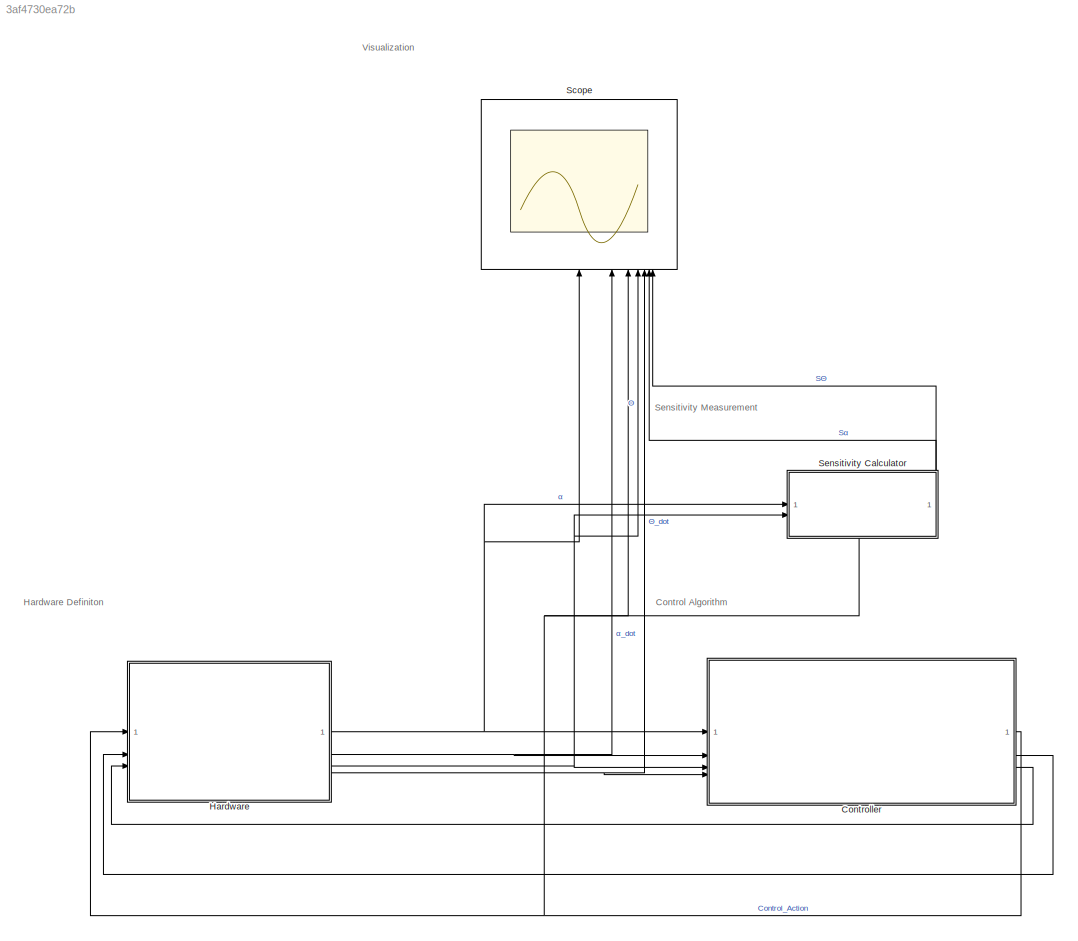
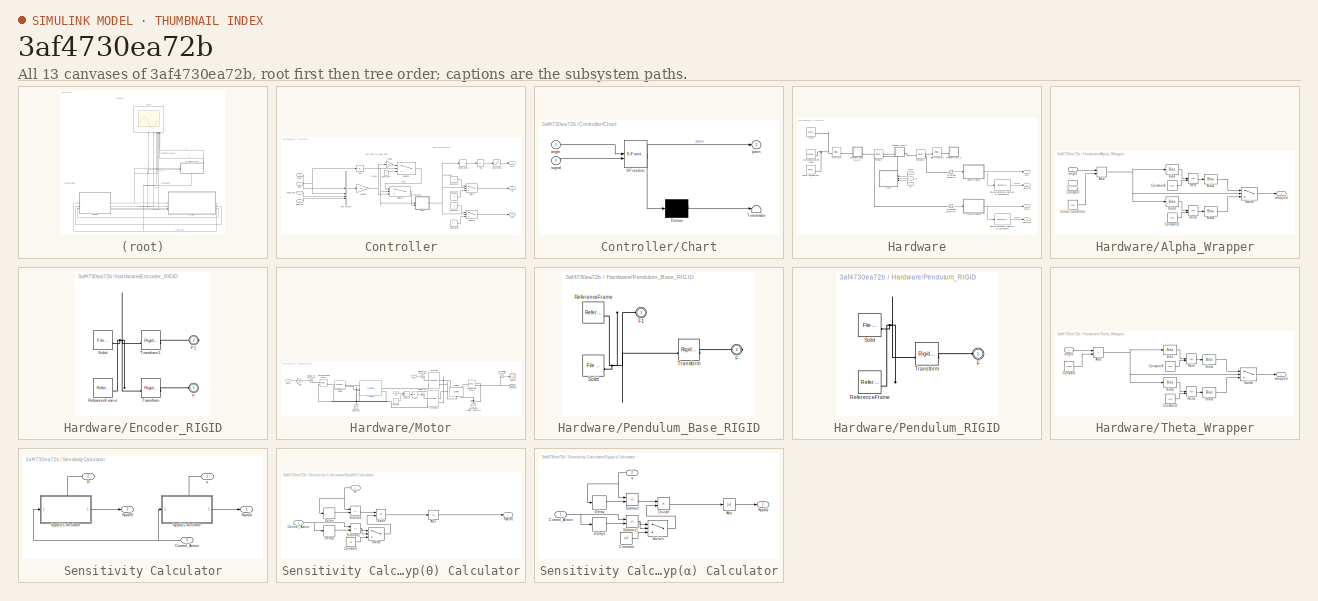
[diagram: thumbnail index - all 13 canvases of the model, root first then tree order]
MODEL slx_3af4730ea72b
KIND model
CONFIG AbsTol = auto
CONFIG EnableMultiTasking = off
CONFIG FixedStep = auto
CONFIG MaxStep = auto
CONFIG MinStep = auto
CONFIG RelTol = 1e-3
CONFIG SampleTimeConstraint = Unconstrained
CONFIG SolverName = ode23t
CONFIG StartTime = 0.0
CONFIG StopTime = inf
WORKSPACE source: external: MATLAB File  (data not in archive)
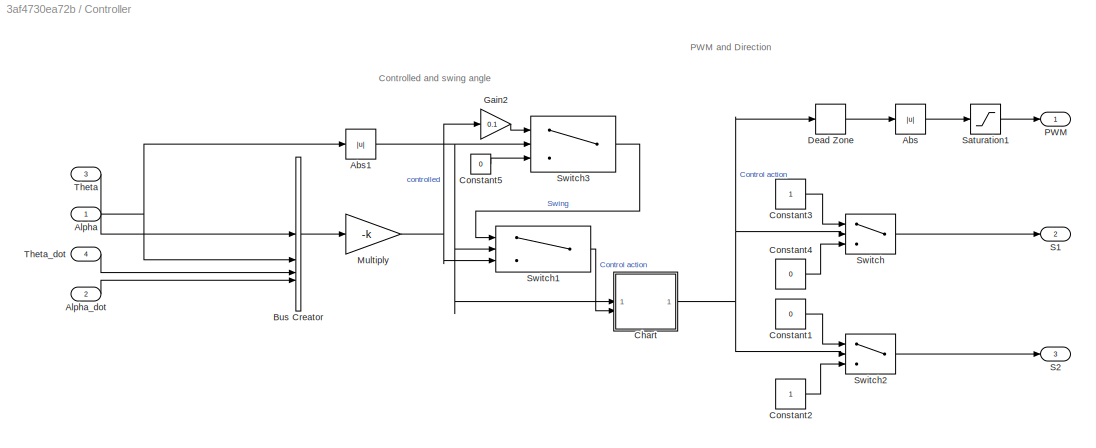
BLOCK [SubSystem] Controller
BLOCK [Abs] Controller/Abs
  OutDataTypeStr = double
  SaturateOnIntegerOverflow = off
BLOCK [Abs] Controller/Abs1
  OutDataTypeStr = double
  SaturateOnIntegerOverflow = off
BLOCK [Inport] Controller/Alpha
BLOCK [Inport] Controller/Alpha_dot
  Port = 2
BLOCK [BusCreator] Controller/Bus Creator
  DisplayOption = bar
  InheritFromInputs = on
  Inputs = 4
BLOCK [SubSystem] Controller/Chart
  ErrorFcn = Stateflow.Translate.translate
  PermitHierarchicalResolution = ExplicitOnly
  PortSchema = {"entries":[{"content":{"sides":[{"content":{"connectorIds":["In2","In1"]},"type":"ConnectorPlacement.EquallySpacedRectSide","uuid":"28e2c2a8-bb0f-48a1-9e94-8475c8c1f5fa"},{"content":{"connectorIds":["Out1"],"side":"RIGHT"},"type":"ConnectorPlacement.EquallySpacedRectSide","uuid":"685929b8-ebaf-43fb-a3f1-f9f50dd919ab"},{"content":{"side":"TOP"},"type":"ConnectorPlacement.EquallySpacedRectSide","uu...<+228ch>
  SFBlockType = Chart
  SystemSampleTime = 0.001
  TreatAsAtomicUnit = on
BLOCK [Demux] Controller/Chart/ Demux 
  Outputs = 1
BLOCK [S-Function] Controller/Chart/ SFunction 
  EnableBusSupport = on
  FunctionName = sf_sfun
  PortCounts = [2 2]
  SFcnIsStateOwnerBlock = off
  SFunctionDeploymentMode = off
  Tag = Stateflow S-Function 3
BLOCK [Terminator] Controller/Chart/ Terminator 
BLOCK [Inport] Controller/Chart/angle
BLOCK [Outport] Controller/Chart/pwm
BLOCK [Inport] Controller/Chart/signal
  Port = 2
BLOCK [Constant] Controller/Constant1
  Value = 0
BLOCK [Constant] Controller/Constant2
BLOCK [Constant] Controller/Constant3
BLOCK [Constant] Controller/Constant4
  Value = 0
BLOCK [Constant] Controller/Constant5
  Value = 0
BLOCK [DeadZone] Controller/Dead Zone
  LowerValue = -0
  UpperValue = 0
BLOCK [Gain] Controller/Gain2
  Gain = 0.1
  OutDataTypeStr = double
BLOCK [Gain] Controller/Multiply
  Gain = -k
  Multiplication = Matrix(K*u) (u vector)
  OutDataTypeStr = double
BLOCK [Outport] Controller/PWM
BLOCK [Outport] Controller/S1
  Port = 2
BLOCK [Outport] Controller/S2
  Port = 3
BLOCK [Saturate] Controller/Saturation1
  LowerLimit = 0
  UpperLimit = 255
BLOCK [Switch] Controller/Switch
  Criteria = u2 > Threshold
  InputSameDT = off
  OutDataTypeStr = double
  SaturateOnIntegerOverflow = off
BLOCK [Switch] Controller/Switch1
  Criteria = u2 > Threshold
  InputSameDT = off
  OutDataTypeStr = double
  SaturateOnIntegerOverflow = off
  Threshold = pi/9
BLOCK [Switch] Controller/Switch2
  Criteria = u2 > Threshold
  InputSameDT = off
  OutDataTypeStr = double
  SaturateOnIntegerOverflow = off
BLOCK [Switch] Controller/Switch3
  Criteria = u2 > Threshold
  InputSameDT = off
  OutDataTypeStr = double
  SaturateOnIntegerOverflow = off
  Threshold = pi*(2/3)
BLOCK [Inport] Controller/Theta
  Port = 3
BLOCK [Inport] Controller/Theta_dot
  Port = 4
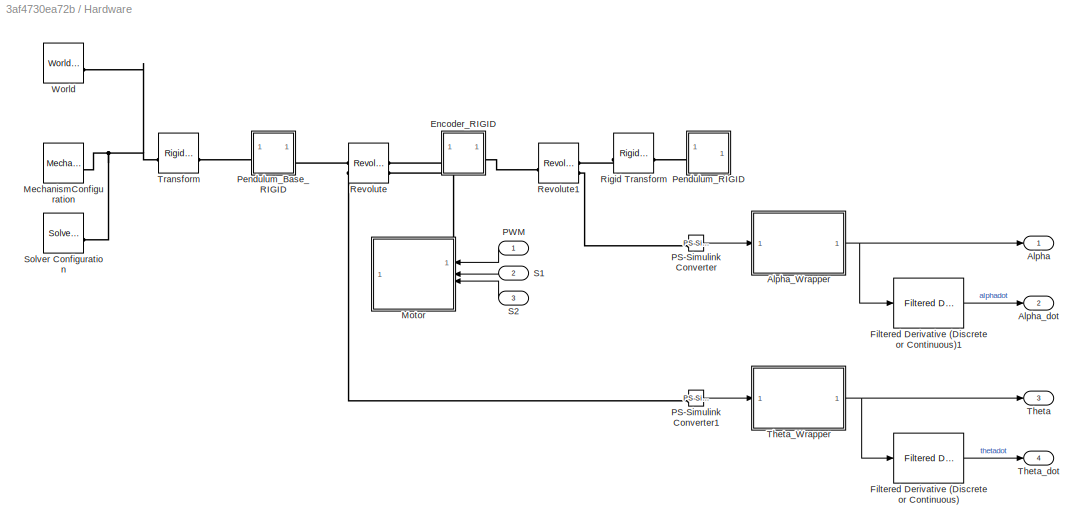
BLOCK [SubSystem] Hardware
BLOCK [Outport] Hardware/Alpha
BLOCK [SubSystem] Hardware/Alpha_Wrapper
  Permissions = ReadOnly
BLOCK [Sum] Hardware/Alpha_Wrapper/Add
  IconShape = rectangular
BLOCK [Bias] Hardware/Alpha_Wrapper/Bias
  Bias = pi
  SaturateOnIntegerOverflow = off
BLOCK [Bias] Hardware/Alpha_Wrapper/Bias1
  Bias = -pi
  SaturateOnIntegerOverflow = off
BLOCK [Bias] Hardware/Alpha_Wrapper/Bias2
  Bias = -pi
  SaturateOnIntegerOverflow = off
BLOCK [Bias] Hardware/Alpha_Wrapper/Bias3
  Bias = pi
  SaturateOnIntegerOverflow = off
BLOCK [Constant] Hardware/Alpha_Wrapper/Constant
  Commented = on
  Value = 0.97222222*pi
BLOCK [Constant] Hardware/Alpha_Wrapper/Constant1
  Value = 2*pi
BLOCK [Constant] Hardware/Alpha_Wrapper/Constant6
  Value = 2*pi
BLOCK [Constant] Hardware/Alpha_Wrapper/Initial Condition
  Value = 2*pi
BLOCK [Math] Hardware/Alpha_Wrapper/Rem
  Operator = rem
  SignedPower = on
BLOCK [Math] Hardware/Alpha_Wrapper/Rem1
  Operator = rem
  SignedPower = on
BLOCK [Switch] Hardware/Alpha_Wrapper/Switch
  Criteria = u2 > Threshold
  InputSameDT = off
  OutDataTypeStr = double
  SaturateOnIntegerOverflow = off
BLOCK [Inport] Hardware/Alpha_Wrapper/angle
BLOCK [Outport] Hardware/Alpha_Wrapper/wrapped
BLOCK [Outport] Hardware/Alpha_dot
  Port = 2
BLOCK [SubSystem] Hardware/Encoder_RIGID
BLOCK [PMIOPort] Hardware/Encoder_RIGID/F
  Side = Left
BLOCK [PMIOPort] Hardware/Encoder_RIGID/F1
  Port = 2
  Side = Right
BLOCK [Reference] Hardware/Encoder_RIGID/ReferenceFrame  REF=sm_lib/Frames and
Transforms/Reference
Frame
  SourceBlock = sm_lib/Frames and\nTransforms/Reference\nFrame
  SourceType = Reference\nFrame
BLOCK [Reference] Hardware/Encoder_RIGID/Solid  REF=sm_lib/Body Elements/File Solid
  SourceBlock = sm_lib/Body Elements/File Solid
  SourceType = File Solid
BLOCK [Reference] Hardware/Encoder_RIGID/Transform  REF=sm_lib/Frames and
Transforms/Rigid
Transform
  SourceBlock = sm_lib/Frames and\nTransforms/Rigid\nTransform
  SourceType = Rigid\nTransform
BLOCK [Reference] Hardware/Encoder_RIGID/Transform1  REF=sm_lib/Frames and
Transforms/Rigid
Transform
  SourceBlock = sm_lib/Frames and\nTransforms/Rigid\nTransform
  SourceType = Rigid\nTransform
BLOCK [Reference] Hardware/Filtered Derivative (Discrete or Continuous)  REF=eeGeneralControl/Filtered Derivative
(Discrete or Continuous)
  NameLocation = top
  SourceBlock = eeGeneralControl/Filtered Derivative\n(Discrete or Continuous)
  SourceType = Filtered Derivative (Discrete or Continuous)
BLOCK [Reference] Hardware/Filtered Derivative (Discrete or Continuous)1  REF=eeGeneralControl/Filtered Derivative
(Discrete or Continuous)
  NameLocation = top
  SourceBlock = eeGeneralControl/Filtered Derivative\n(Discrete or Continuous)
  SourceType = Filtered Derivative (Discrete or Continuous)
BLOCK [Reference] Hardware/MechanismConfiguration  REF=sm_lib/Utilities/Mechanism
Configuration
  SourceBlock = sm_lib/Utilities/Mechanism\nConfiguration
  SourceType = Mechanism\nConfiguration
BLOCK [SubSystem] Hardware/Motor
  Permissions = ReadOnly
  PortSchema = {"entries":[{"content":{"sides":[{"content":{"connectorIds":["In1","In2","In3"]},"type":"ConnectorPlacement.EquallySpacedRectSide","uuid":"136519c0-e6e7-4f60-8118-7da421ad854f"},{"content":{"side":"RIGHT"},"type":"ConnectorPlacement.EquallySpacedRectSide","uuid":"84029570-417a-4f29-8386-7a87dba75fb0"},{"content":{"connectorIds":["LConn1"],"side":"TOP"},"type":"ConnectorPlacement.EquallySpacedRectS...<+362ch>
BLOCK [Abs] Hardware/Motor/Abs
  SaturateOnIntegerOverflow = off
BLOCK [Constant] Hardware/Motor/Constant
BLOCK [Reference] Hardware/Motor/Controlled PWM Voltage  REF=ee_lib/Integrated Circuits/Controlled PWM
Voltage
  SourceBlock = ee_lib/Integrated Circuits/Controlled PWM\nVoltage
  SourceType = Controlled PWM\nVoltage
BLOCK [Reference] Hardware/Motor/Controlled Voltage Source  REF=fl_lib/Electrical/Electrical Sources/Controlled Voltage
Source
  SourceBlock = fl_lib/Electrical/Electrical Sources/Controlled Voltage\nSource
  SourceType = Controlled Voltage\nSource
BLOCK [Reference] Hardware/Motor/DC Motor  REF=ee_lib/Electromechanical/Brushed Motors/DC Motor
  NameLocation = right
  SourceBlock = ee_lib/Electromechanical/Brushed Motors/DC Motor
  SourceType = DC Motor
BLOCK [Reference] Hardware/Motor/Electrical Reference  REF=fl_lib/Electrical/Electrical Elements/Electrical Reference
  NameLocation = right
  SourceBlock = fl_lib/Electrical/Electrical Elements/Electrical Reference
  SourceType = Electrical Reference
BLOCK [Gain] Hardware/Motor/Gain
  Gain = 12/255
BLOCK [Reference] Hardware/Motor/H-Bridge  REF=ee_lib/Semiconductors &
Converters/Converters/H-Bridge
  SourceBlock = ee_lib/Semiconductors &\nConverters/Converters/H-Bridge
  SourceType = H-Bridge
BLOCK [Reference] Hardware/Motor/Ideal Torque Sensor  REF=fl_lib/Mechanical/Mechanical Sensors/Ideal Torque Sensor
  SourceBlock = fl_lib/Mechanical/Mechanical Sensors/Ideal Torque Sensor
  SourceType = Ideal Torque Sensor
BLOCK [PMIOPort] Hardware/Motor/M_Torque
  Side = Left
BLOCK [Reference] Hardware/Motor/Mechanical Rotational Reference  REF=fl_lib/Mechanical/Rotational Elements/Mechanical
Rotational Reference
  NameLocation = right
  SourceBlock = fl_lib/Mechanical/Rotational Elements/Mechanical\nRotational Reference
  SourceType = Mechanical\nRotational Reference
BLOCK [Reference] Hardware/Motor/PS-Simulink Converter  REF=nesl_utility/PS-Simulink
Converter
  SourceBlock = nesl_utility/PS-Simulink\nConverter
  SourceType = PS-Simulink\nConverter
BLOCK [Inport] Hardware/Motor/PWM
BLOCK [Inport] Hardware/Motor/S1
  Port = 2
BLOCK [Inport] Hardware/Motor/S2
  Port = 3
BLOCK [Reference] Hardware/Motor/SPDT Switch  REF=ee_lib/Switches & Breakers/SPDT Switch
  SourceBlock = ee_lib/Switches & Breakers/SPDT Switch
  SourceType = SPDT Switch
BLOCK [Reference] Hardware/Motor/SPDT Switch1  REF=ee_lib/Switches & Breakers/SPDT Switch
  SourceBlock = ee_lib/Switches & Breakers/SPDT Switch
  SourceType = SPDT Switch
BLOCK [Scope] Hardware/Motor/Scope
  Floating = off
  NumInputPorts = 1
  ScopeSpecificationString = Simulink.scopes.TimeScopeBlockCfg('CurrentConfiguration', extmgr.ConfigurationSet(extmgr.Configuration('Core','General UI',true),extmgr.Configuration('Core','Source UI',true),extmgr.Configuration('Sources','WiredSimulink',true,'DataLoggingVariableName','ScopeData1'),extmgr.Configuration('Visuals','Time Domain',true,'SerializedDisplays',{struct('MinYLimReal','-1.03179','MaxYLimReal','0.87704','YLab...<+1413ch>
BLOCK [Reference] Hardware/Motor/Simulink-PS Converter  REF=nesl_utility/Simulink-PS
Converter
  SourceBlock = nesl_utility/Simulink-PS\nConverter
  SourceType = Simulink-PS\nConverter
BLOCK [Reference] Hardware/Motor/Simulink-PS Converter1  REF=nesl_utility/Simulink-PS
Converter
  SourceBlock = nesl_utility/Simulink-PS\nConverter
  SourceType = Simulink-PS\nConverter
BLOCK [Reference] Hardware/Motor/Simulink-PS Converter2  REF=nesl_utility/Simulink-PS
Converter
  SourceBlock = nesl_utility/Simulink-PS\nConverter
  SourceType = Simulink-PS\nConverter
BLOCK [Sum] Hardware/Motor/Subtract
  IconShape = rectangular
  Inputs = +-
BLOCK [Reference] Hardware/PS-Simulink Converter  REF=nesl_utility/PS-Simulink
Converter
  SourceBlock = nesl_utility/PS-Simulink\nConverter
  SourceType = PS-Simulink\nConverter
BLOCK [Reference] Hardware/PS-Simulink Converter1  REF=nesl_utility/PS-Simulink
Converter
  SourceBlock = nesl_utility/PS-Simulink\nConverter
  SourceType = PS-Simulink\nConverter
BLOCK [Inport] Hardware/PWM
BLOCK [SubSystem] Hardware/Pendulum_Base_RIGID
BLOCK [PMIOPort] Hardware/Pendulum_Base_RIGID/F
  Port = 2
  Side = Right
BLOCK [PMIOPort] Hardware/Pendulum_Base_RIGID/F1
  Side = Left
BLOCK [Reference] Hardware/Pendulum_Base_RIGID/ReferenceFrame  REF=sm_lib/Frames and
Transforms/Reference
Frame
  SourceBlock = sm_lib/Frames and\nTransforms/Reference\nFrame
  SourceType = Reference\nFrame
BLOCK [Reference] Hardware/Pendulum_Base_RIGID/Solid  REF=sm_lib/Body Elements/File Solid
  SourceBlock = sm_lib/Body Elements/File Solid
  SourceType = File Solid
BLOCK [Reference] Hardware/Pendulum_Base_RIGID/Transform  REF=sm_lib/Frames and
Transforms/Rigid
Transform
  SourceBlock = sm_lib/Frames and\nTransforms/Rigid\nTransform
  SourceType = Rigid\nTransform
BLOCK [SubSystem] Hardware/Pendulum_RIGID
BLOCK [PMIOPort] Hardware/Pendulum_RIGID/F
  Side = Left
BLOCK [Reference] Hardware/Pendulum_RIGID/ReferenceFrame  REF=sm_lib/Frames and
Transforms/Reference
Frame
  SourceBlock = sm_lib/Frames and\nTransforms/Reference\nFrame
  SourceType = Reference\nFrame
BLOCK [Reference] Hardware/Pendulum_RIGID/Solid  REF=sm_lib/Body Elements/File Solid
  SourceBlock = sm_lib/Body Elements/File Solid
  SourceType = File Solid
BLOCK [Reference] Hardware/Pendulum_RIGID/Transform  REF=sm_lib/Frames and
Transforms/Rigid
Transform
  SourceBlock = sm_lib/Frames and\nTransforms/Rigid\nTransform
  SourceType = Rigid\nTransform
BLOCK [Reference] Hardware/Revolute  REF=sm_lib/Joints/Revolute Joint
  SourceBlock = sm_lib/Joints/Revolute Joint
  SourceType = Revolute Joint
BLOCK [Reference] Hardware/Revolute1  REF=sm_lib/Joints/Revolute Joint
  SourceBlock = sm_lib/Joints/Revolute Joint
  SourceType = Revolute Joint
BLOCK [Reference] Hardware/Rigid Transform  REF=sm_lib/Frames and
Transforms/Rigid
Transform
  SourceBlock = sm_lib/Frames and\nTransforms/Rigid\nTransform
  SourceType = Rigid\nTransform
BLOCK [Inport] Hardware/S1
  Port = 2
BLOCK [Inport] Hardware/S2
  Port = 3
BLOCK [Reference] Hardware/Solver Configuration  REF=nesl_utility/Solver
Configuration
  SourceBlock = nesl_utility/Solver\nConfiguration
  SourceType = Solver\nConfiguration
BLOCK [Outport] Hardware/Theta
  Port = 3
BLOCK [SubSystem] Hardware/Theta_Wrapper
  Permissions = ReadOnly
BLOCK [Sum] Hardware/Theta_Wrapper/Add
  IconShape = rectangular
BLOCK [Bias] Hardware/Theta_Wrapper/Bias
  Bias = pi
  SaturateOnIntegerOverflow = off
BLOCK [Bias] Hardware/Theta_Wrapper/Bias1
  Bias = -pi
  SaturateOnIntegerOverflow = off
BLOCK [Bias] Hardware/Theta_Wrapper/Bias2
  Bias = -pi
  SaturateOnIntegerOverflow = off
BLOCK [Bias] Hardware/Theta_Wrapper/Bias3
  Bias = pi
  SaturateOnIntegerOverflow = off
BLOCK [Constant] Hardware/Theta_Wrapper/Constant
  Value = 0.553
BLOCK [Constant] Hardware/Theta_Wrapper/Constant1
  Value = 2*pi
BLOCK [Constant] Hardware/Theta_Wrapper/Constant6
  Value = 2*pi
BLOCK [Math] Hardware/Theta_Wrapper/Rem
  Operator = rem
  SignedPower = on
BLOCK [Math] Hardware/Theta_Wrapper/Rem1
  Operator = rem
  SignedPower = on
BLOCK [Switch] Hardware/Theta_Wrapper/Switch
  Criteria = u2 > Threshold
  InputSameDT = off
  OutDataTypeStr = double
  SaturateOnIntegerOverflow = off
BLOCK [Inport] Hardware/Theta_Wrapper/angle
BLOCK [Outport] Hardware/Theta_Wrapper/wrapped
BLOCK [Outport] Hardware/Theta_dot
  Port = 4
BLOCK [Reference] Hardware/Transform  REF=sm_lib/Frames and
Transforms/Rigid
Transform
  SourceBlock = sm_lib/Frames and\nTransforms/Rigid\nTransform
  SourceType = Rigid\nTransform
BLOCK [Reference] Hardware/World  REF=sm_lib/Frames and
Transforms/World Frame
  SourceBlock = sm_lib/Frames and\nTransforms/World Frame
  SourceType = World Frame
BLOCK [Scope] Scope
  Floating = off
  NameLocation = right
  NumInputPorts = 7
  ScopeSpecificationString = Simulink.scopes.TimeScopeBlockCfg('CurrentConfiguration', extmgr.ConfigurationSet(extmgr.Configuration('Core','General UI',true),extmgr.Configuration('Core','Source UI',true),extmgr.Configuration('Sources','WiredSimulink',true),extmgr.Configuration('Visuals','Time Domain',true,'SerializedDisplays',{struct('MinYLimReal','-3.92699','MaxYLimReal','3.92699','YLabelReal','','MinYLimMag','0.00000','MaxY...<+6192ch>
BLOCK [SubSystem] Sensitivity Calculator
  PortSchema = {"entries":[{"content":{"sides":[{"content":{"connectorIds":["In1","In2"]},"type":"ConnectorPlacement.EquallySpacedRectSide","uuid":"a2b76d68-7d10-4964-b793-c2b104dfa3db"},{"content":{"side":"RIGHT"},"type":"ConnectorPlacement.EquallySpacedRectSide","uuid":"40182234-6568-4180-b40e-3a35cefd8a8d"},{"content":{"connectorIds":["Out1","Out2"],"side":"TOP"},"type":"ConnectorPlacement.EquallySpacedRectSi...<+384ch>
BLOCK [Inport] Sensitivity Calculator/Control_Action
  Port = 3
BLOCK [Outport] Sensitivity Calculator/Syp(Θ)
  Port = 2
BLOCK [SubSystem] Sensitivity Calculator/Syp(Θ) Calculator
  Permissions = ReadOnly
  PortSchema = {"entries":[{"content":{"sides":[{"content":{"connectorIds":["In1"]},"type":"ConnectorPlacement.EquallySpacedRectSide","uuid":"27eef1b6-850a-46d6-9e95-ce758ac832b8"},{"content":{"connectorIds":["Out1"],"side":"RIGHT"},"type":"ConnectorPlacement.EquallySpacedRectSide","uuid":"734eba0d-f9a1-4135-9d68-f935bde65952"},{"content":{"connectorIds":["In2"],"side":"TOP"},"type":"ConnectorPlacement.EquallySp...<+371ch>
BLOCK [Abs] Sensitivity Calculator/Syp(Θ) Calculator/Abs
  SaturateOnIntegerOverflow = off
BLOCK [Constant] Sensitivity Calculator/Syp(Θ) Calculator/Constant
  Value = inf
BLOCK [Inport] Sensitivity Calculator/Syp(Θ) Calculator/Control_Action
BLOCK [Delay] Sensitivity Calculator/Syp(Θ) Calculator/Delay
  InputPortMap = u0
BLOCK [Delay] Sensitivity Calculator/Syp(Θ) Calculator/Delay1
  InputPortMap = u0
BLOCK [Product] Sensitivity Calculator/Syp(Θ) Calculator/Divide
  Inputs = */
BLOCK [Sum] Sensitivity Calculator/Syp(Θ) Calculator/Subtract
  IconShape = rectangular
  Inputs = +-
BLOCK [Sum] Sensitivity Calculator/Syp(Θ) Calculator/Subtract1
  IconShape = rectangular
  Inputs = +-
BLOCK [Switch] Sensitivity Calculator/Syp(Θ) Calculator/Switch
  Criteria = u2 > Threshold
  InputSameDT = off
  SaturateOnIntegerOverflow = off
BLOCK [Outport] Sensitivity Calculator/Syp(Θ) Calculator/Syp(Θ)
BLOCK [Inport] Sensitivity Calculator/Syp(Θ) Calculator/Θ
  Port = 2
BLOCK [Outport] Sensitivity Calculator/Syp(α)
BLOCK [SubSystem] Sensitivity Calculator/Syp(α) Calculator
  Permissions = ReadOnly
  PortSchema = {"entries":[{"content":{"sides":[{"content":{"connectorIds":["In1"]},"type":"ConnectorPlacement.EquallySpacedRectSide","uuid":"27eef1b6-850a-46d6-9e95-ce758ac832b8"},{"content":{"connectorIds":["Out1"],"side":"RIGHT"},"type":"ConnectorPlacement.EquallySpacedRectSide","uuid":"734eba0d-f9a1-4135-9d68-f935bde65952"},{"content":{"connectorIds":["In2"],"side":"TOP"},"type":"ConnectorPlacement.EquallySp...<+371ch>
BLOCK [Abs] Sensitivity Calculator/Syp(α) Calculator/Abs
  SaturateOnIntegerOverflow = off
BLOCK [Constant] Sensitivity Calculator/Syp(α) Calculator/Constant
  Value = inf
BLOCK [Inport] Sensitivity Calculator/Syp(α) Calculator/Control_Action
BLOCK [Delay] Sensitivity Calculator/Syp(α) Calculator/Delay
  InputPortMap = u0
BLOCK [Delay] Sensitivity Calculator/Syp(α) Calculator/Delay1
  InputPortMap = u0
BLOCK [Product] Sensitivity Calculator/Syp(α) Calculator/Divide
  Inputs = */
BLOCK [Sum] Sensitivity Calculator/Syp(α) Calculator/Subtract
  IconShape = rectangular
  Inputs = +-
BLOCK [Sum] Sensitivity Calculator/Syp(α) Calculator/Subtract1
  IconShape = rectangular
  Inputs = +-
BLOCK [Switch] Sensitivity Calculator/Syp(α) Calculator/Switch
  Criteria = u2 > Threshold
  InputSameDT = off
  SaturateOnIntegerOverflow = off
BLOCK [Outport] Sensitivity Calculator/Syp(α) Calculator/Syp(α)
BLOCK [Inport] Sensitivity Calculator/Syp(α) Calculator/α
  Port = 2
BLOCK [Inport] Sensitivity Calculator/Θ
  Port = 2
BLOCK [Inport] Sensitivity Calculator/α
ANNOTATION (root): Control Algorithm
ANNOTATION (root): Hardware Definiton
ANNOTATION (root): Sensitivity Measurement
ANNOTATION (root): Visualization
ANNOTATION Controller: Controlled and swing angle
ANNOTATION Controller: PWM and Direction
NET Controller/Abs1:1 -> Controller/Chart:1, Controller/Switch1:2, Controller/Switch3:2
LINE Controller/Abs:1 -> Controller/Saturation1:1
NET Controller/Alpha:1 -> Controller/Abs1:1, Controller/Bus Creator:2
LINE Controller/Alpha_dot:1 -> Controller/Bus Creator:4
LINE Controller/Bus Creator:1 -> Controller/Multiply:1
NET Controller/Chart:1 -> Controller/Dead Zone:1, Controller/Switch2:2, Controller/Switch:2
LINE Controller/Constant1:1 -> Controller/Switch2:1
LINE Controller/Constant2:1 -> Controller/Switch2:3
LINE Controller/Constant3:1 -> Controller/Switch:1
LINE Controller/Constant4:1 -> Controller/Switch:3
LINE Controller/Constant5:1 -> Controller/Switch3:3
LINE Controller/Dead Zone:1 -> Controller/Abs:1
LINE Controller/Gain2:1 -> Controller/Switch3:1
NET Controller/Multiply:1 -> Controller/Gain2:1, Controller/Switch1:3
LINE Controller/Saturation1:1 -> Controller/PWM:1
LINE Controller/Switch1:1 -> Controller/Chart:2
LINE Controller/Switch2:1 -> Controller/S2:1
LINE Controller/Switch3:1 -> Controller/Switch1:1
LINE Controller/Switch:1 -> Controller/S1:1
LINE Controller/Theta:1 -> Controller/Bus Creator:1
LINE Controller/Theta_dot:1 -> Controller/Bus Creator:3
NET Controller:1 -> Hardware:1, Scope:3, Sensitivity Calculator:3
LINE Controller:2 -> Hardware:2
LINE Controller:3 -> Hardware:3
NET Hardware/Alpha_Wrapper/Add:1 -> Hardware/Alpha_Wrapper/Bias2:1, Hardware/Alpha_Wrapper/Bias:1, Hardware/Alpha_Wrapper/Switch:2
LINE Hardware/Alpha_Wrapper/Bias1:1 -> Hardware/Alpha_Wrapper/Switch:1
LINE Hardware/Alpha_Wrapper/Bias2:1 -> Hardware/Alpha_Wrapper/Rem1:1
LINE Hardware/Alpha_Wrapper/Bias3:1 -> Hardware/Alpha_Wrapper/Switch:3
LINE Hardware/Alpha_Wrapper/Bias:1 -> Hardware/Alpha_Wrapper/Rem:1
LINE Hardware/Alpha_Wrapper/Constant1:1 -> Hardware/Alpha_Wrapper/Rem1:2
LINE Hardware/Alpha_Wrapper/Constant6:1 -> Hardware/Alpha_Wrapper/Rem:2
LINE Hardware/Alpha_Wrapper/Initial Condition:1 -> Hardware/Alpha_Wrapper/Add:2
LINE Hardware/Alpha_Wrapper/Rem1:1 -> Hardware/Alpha_Wrapper/Bias3:1
LINE Hardware/Alpha_Wrapper/Rem:1 -> Hardware/Alpha_Wrapper/Bias1:1
LINE Hardware/Alpha_Wrapper/Switch:1 -> Hardware/Alpha_Wrapper/wrapped:1
LINE Hardware/Alpha_Wrapper/angle:1 -> Hardware/Alpha_Wrapper/Add:1
NET Hardware/Alpha_Wrapper:1 -> Hardware/Alpha:1, Hardware/Filtered Derivative (Discrete or Continuous)1:1
LINE Hardware/Filtered Derivative (Discrete or Continuous)1:1 -> Hardware/Alpha_dot:1
LINE Hardware/Filtered Derivative (Discrete or Continuous):1 -> Hardware/Theta_dot:1
LINE Hardware/Motor/Abs:1 -> Hardware/Motor/Simulink-PS Converter2:1
LINE Hardware/Motor/Constant:1 -> Hardware/Motor/Subtract:2
LINE Hardware/Motor/Gain:1 -> Hardware/Motor/Simulink-PS Converter:1
LINE Hardware/Motor/PS-Simulink Converter:1 -> Hardware/Motor/Scope:1
LINE Hardware/Motor/PWM:1 -> Hardware/Motor/Gain:1
LINE Hardware/Motor/S1:1 -> Hardware/Motor/Simulink-PS Converter1:1
LINE Hardware/Motor/S2:1 -> Hardware/Motor/Subtract:1
LINE Hardware/Motor/Subtract:1 -> Hardware/Motor/Abs:1
LINE Hardware/PS-Simulink Converter1:1 -> Hardware/Theta_Wrapper:1
LINE Hardware/PS-Simulink Converter:1 -> Hardware/Alpha_Wrapper:1
LINE Hardware/PWM:1 -> Hardware/Motor:1
LINE Hardware/S1:1 -> Hardware/Motor:2
LINE Hardware/S2:1 -> Hardware/Motor:3
NET Hardware/Theta_Wrapper/Add:1 -> Hardware/Theta_Wrapper/Bias2:1, Hardware/Theta_Wrapper/Bias:1, Hardware/Theta_Wrapper/Switch:2
LINE Hardware/Theta_Wrapper/Bias1:1 -> Hardware/Theta_Wrapper/Switch:1
LINE Hardware/Theta_Wrapper/Bias2:1 -> Hardware/Theta_Wrapper/Rem1:1
LINE Hardware/Theta_Wrapper/Bias3:1 -> Hardware/Theta_Wrapper/Switch:3
LINE Hardware/Theta_Wrapper/Bias:1 -> Hardware/Theta_Wrapper/Rem:1
LINE Hardware/Theta_Wrapper/Constant1:1 -> Hardware/Theta_Wrapper/Rem1:2
LINE Hardware/Theta_Wrapper/Constant6:1 -> Hardware/Theta_Wrapper/Rem:2
LINE Hardware/Theta_Wrapper/Constant:1 -> Hardware/Theta_Wrapper/Add:2
LINE Hardware/Theta_Wrapper/Rem1:1 -> Hardware/Theta_Wrapper/Bias3:1
LINE Hardware/Theta_Wrapper/Rem:1 -> Hardware/Theta_Wrapper/Bias1:1
LINE Hardware/Theta_Wrapper/Switch:1 -> Hardware/Theta_Wrapper/wrapped:1
LINE Hardware/Theta_Wrapper/angle:1 -> Hardware/Theta_Wrapper/Add:1
NET Hardware/Theta_Wrapper:1 -> Hardware/Filtered Derivative (Discrete or Continuous):1, Hardware/Theta:1
NET Hardware:1 -> Controller:1, Scope:1, Sensitivity Calculator:1
NET Hardware:2 -> Controller:2, Scope:2
NET Hardware:3 -> Controller:3, Scope:4, Sensitivity Calculator:2
NET Hardware:4 -> Controller:4, Scope:5
NET Sensitivity Calculator/Control_Action:1 -> Sensitivity Calculator/Syp(Θ) Calculator:1, Sensitivity Calculator/Syp(α) Calculator:1
LINE Sensitivity Calculator/Syp(Θ) Calculator/Abs:1 -> Sensitivity Calculator/Syp(Θ) Calculator/Syp(Θ):1
LINE Sensitivity Calculator/Syp(Θ) Calculator/Constant:1 -> Sensitivity Calculator/Syp(Θ) Calculator/Switch:3
NET Sensitivity Calculator/Syp(Θ) Calculator/Control_Action:1 -> Sensitivity Calculator/Syp(Θ) Calculator/Delay1:1, Sensitivity Calculator/Syp(Θ) Calculator/Subtract1:1
LINE Sensitivity Calculator/Syp(Θ) Calculator/Delay1:1 -> Sensitivity Calculator/Syp(Θ) Calculator/Subtract1:2
LINE Sensitivity Calculator/Syp(Θ) Calculator/Delay:1 -> Sensitivity Calculator/Syp(Θ) Calculator/Subtract:2
LINE Sensitivity Calculator/Syp(Θ) Calculator/Divide:1 -> Sensitivity Calculator/Syp(Θ) Calculator/Abs:1
NET Sensitivity Calculator/Syp(Θ) Calculator/Subtract1:1 -> Sensitivity Calculator/Syp(Θ) Calculator/Switch:1, Sensitivity Calculator/Syp(Θ) Calculator/Switch:2
LINE Sensitivity Calculator/Syp(Θ) Calculator/Subtract:1 -> Sensitivity Calculator/Syp(Θ) Calculator/Divide:1
LINE Sensitivity Calculator/Syp(Θ) Calculator/Switch:1 -> Sensitivity Calculator/Syp(Θ) Calculator/Divide:2
NET Sensitivity Calculator/Syp(Θ) Calculator/Θ:1 -> Sensitivity Calculator/Syp(Θ) Calculator/Delay:1, Sensitivity Calculator/Syp(Θ) Calculator/Subtract:1
LINE Sensitivity Calculator/Syp(Θ) Calculator:1 -> Sensitivity Calculator/Syp(Θ):1
LINE Sensitivity Calculator/Syp(α) Calculator/Abs:1 -> Sensitivity Calculator/Syp(α) Calculator/Syp(α):1
LINE Sensitivity Calculator/Syp(α) Calculator/Constant:1 -> Sensitivity Calculator/Syp(α) Calculator/Switch:3
NET Sensitivity Calculator/Syp(α) Calculator/Control_Action:1 -> Sensitivity Calculator/Syp(α) Calculator/Delay1:1, Sensitivity Calculator/Syp(α) Calculator/Subtract1:1
LINE Sensitivity Calculator/Syp(α) Calculator/Delay1:1 -> Sensitivity Calculator/Syp(α) Calculator/Subtract1:2
LINE Sensitivity Calculator/Syp(α) Calculator/Delay:1 -> Sensitivity Calculator/Syp(α) Calculator/Subtract:2
LINE Sensitivity Calculator/Syp(α) Calculator/Divide:1 -> Sensitivity Calculator/Syp(α) Calculator/Abs:1
NET Sensitivity Calculator/Syp(α) Calculator/Subtract1:1 -> Sensitivity Calculator/Syp(α) Calculator/Switch:1, Sensitivity Calculator/Syp(α) Calculator/Switch:2
LINE Sensitivity Calculator/Syp(α) Calculator/Subtract:1 -> Sensitivity Calculator/Syp(α) Calculator/Divide:1
LINE Sensitivity Calculator/Syp(α) Calculator/Switch:1 -> Sensitivity Calculator/Syp(α) Calculator/Divide:2
NET Sensitivity Calculator/Syp(α) Calculator/α:1 -> Sensitivity Calculator/Syp(α) Calculator/Delay:1, Sensitivity Calculator/Syp(α) Calculator/Subtract:1
LINE Sensitivity Calculator/Syp(α) Calculator:1 -> Sensitivity Calculator/Syp(α):1
LINE Sensitivity Calculator/Θ:1 -> Sensitivity Calculator/Syp(Θ) Calculator:2
LINE Sensitivity Calculator/α:1 -> Sensitivity Calculator/Syp(α) Calculator:2
LINE Sensitivity Calculator:1 -> Scope:6
LINE Sensitivity Calculator:2 -> Scope:7
PLINE Hardware/Encoder_RIGID/F1:RConn1 -- Hardware/Encoder_RIGID/Transform1:RConn1
PLINE Hardware/Encoder_RIGID/F:RConn1 -- Hardware/Encoder_RIGID/Transform:RConn1
PNET net1: Hardware/Encoder_RIGID/ReferenceFrame:RConn1 -- Hardware/Encoder_RIGID/Solid:RConn1 -- Hardware/Encoder_RIGID/Transform1:LConn1 -- Hardware/Encoder_RIGID/Transform:LConn1
PLINE Hardware/Encoder_RIGID:LConn1 -- Hardware/Revolute:LConn1
PLINE Hardware/Encoder_RIGID:RConn1 -- Hardware/Revolute1:LConn1
PNET net2: Hardware/MechanismConfiguration:RConn1 -- Hardware/Solver Configuration:RConn1 -- Hardware/Transform:LConn1 -- Hardware/World:RConn1
PLINE Hardware/Motor/Controlled PWM Voltage:LConn1 -- Hardware/Motor/Controlled Voltage Source:LConn1
PNET net3: Hardware/Motor/Controlled PWM Voltage:LConn2 -- Hardware/Motor/Controlled PWM Voltage:RConn2 -- Hardware/Motor/Controlled Voltage Source:RConn2 -- Hardware/Motor/Electrical Reference:LConn1 -- Hardware/Motor/H-Bridge:LConn2 -- Hardware/Motor/H-Bridge:LConn3 -- Hardware/Motor/H-Bridge:LConn4 -- Hardware/Motor/H-Bridge:RConn2 -- Hardware/Motor/SPDT Switch1:LConn2
PLINE Hardware/Motor/Controlled PWM Voltage:RConn1 -- Hardware/Motor/H-Bridge:LConn1
PLINE Hardware/Motor/Controlled Voltage Source:RConn1 -- Hardware/Motor/Simulink-PS Converter:RConn1
PNET net4: Hardware/Motor/DC Motor:LConn1 -- Hardware/Motor/SPDT Switch1:RConn2 -- Hardware/Motor/SPDT Switch:RConn1
PLINE Hardware/Motor/DC Motor:LConn2 -- Hardware/Motor/Ideal Torque Sensor:LConn1
PNET net5: Hardware/Motor/DC Motor:RConn1 -- Hardware/Motor/SPDT Switch1:RConn1 -- Hardware/Motor/SPDT Switch:RConn2
PNET net6: Hardware/Motor/DC Motor:RConn2 -- Hardware/Motor/Ideal Torque Sensor:RConn1 -- Hardware/Motor/Mechanical Rotational Reference:LConn1
PLINE Hardware/Motor/H-Bridge:RConn1 -- Hardware/Motor/SPDT Switch:LConn2
PNET net7: Hardware/Motor/Ideal Torque Sensor:RConn2 -- Hardware/Motor/M_Torque:RConn1 -- Hardware/Motor/PS-Simulink Converter:LConn1
PLINE Hardware/Motor/SPDT Switch1:LConn1 -- Hardware/Motor/Simulink-PS Converter2:RConn1
PLINE Hardware/Motor/SPDT Switch:LConn1 -- Hardware/Motor/Simulink-PS Converter1:RConn1
PLINE Hardware/Motor:LConn1 -- Hardware/Revolute:LConn2
PLINE Hardware/PS-Simulink Converter1:LConn1 -- Hardware/Revolute:RConn2
PLINE Hardware/PS-Simulink Converter:LConn1 -- Hardware/Revolute1:RConn2
PNET net8: Hardware/Pendulum_Base_RIGID/F1:RConn1 -- Hardware/Pendulum_Base_RIGID/ReferenceFrame:RConn1 -- Hardware/Pendulum_Base_RIGID/Solid:RConn1 -- Hardware/Pendulum_Base_RIGID/Transform:LConn1
PLINE Hardware/Pendulum_Base_RIGID/F:RConn1 -- Hardware/Pendulum_Base_RIGID/Transform:RConn1
PLINE Hardware/Pendulum_Base_RIGID:LConn1 -- Hardware/Transform:RConn1
PLINE Hardware/Pendulum_Base_RIGID:RConn1 -- Hardware/Revolute:RConn1
PLINE Hardware/Pendulum_RIGID/F:RConn1 -- Hardware/Pendulum_RIGID/Transform:RConn1
PNET net9: Hardware/Pendulum_RIGID/ReferenceFrame:RConn1 -- Hardware/Pendulum_RIGID/Solid:RConn1 -- Hardware/Pendulum_RIGID/Transform:LConn1
PLINE Hardware/Pendulum_RIGID:LConn1 -- Hardware/Rigid Transform:RConn1
PLINE Hardware/Revolute1:RConn1 -- Hardware/Rigid Transform:LConn1
note: NET lines group one-source signal fan-out (src -> all destinations, sorted); 1:1 wires keep LINE; PNET lines group multi-terminal physical nets as a canonical sorted terminal list (undirected conserving connections); 2-terminal nets keep the pairwise PLINE form
CHART Controller/Chart states=2 transitions=3
  STATE_LABEL 'Swing\npwm=-150;\n'
  STATE_LABEL 'Stabilize\npwm = signal\n'
CHART  states=0 transitions=0
